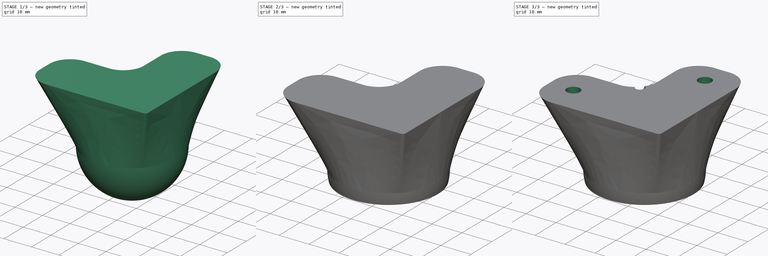
[diagram: build sequence overview — one tinted view per stage of 3, left to right]
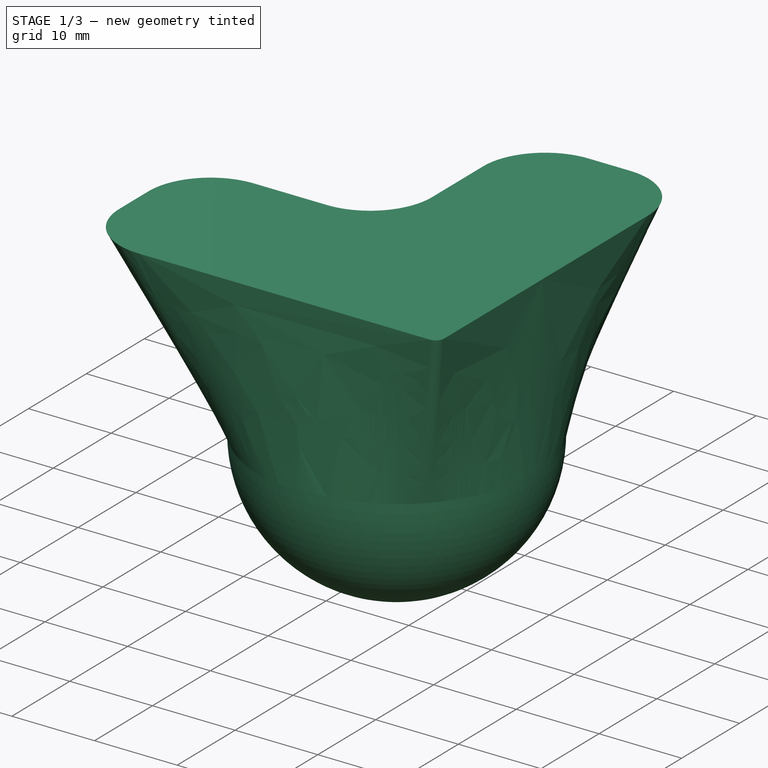
[diagram: stage 1 of 3 — iso view after this stage's code; geometry added in this stage tinted green]
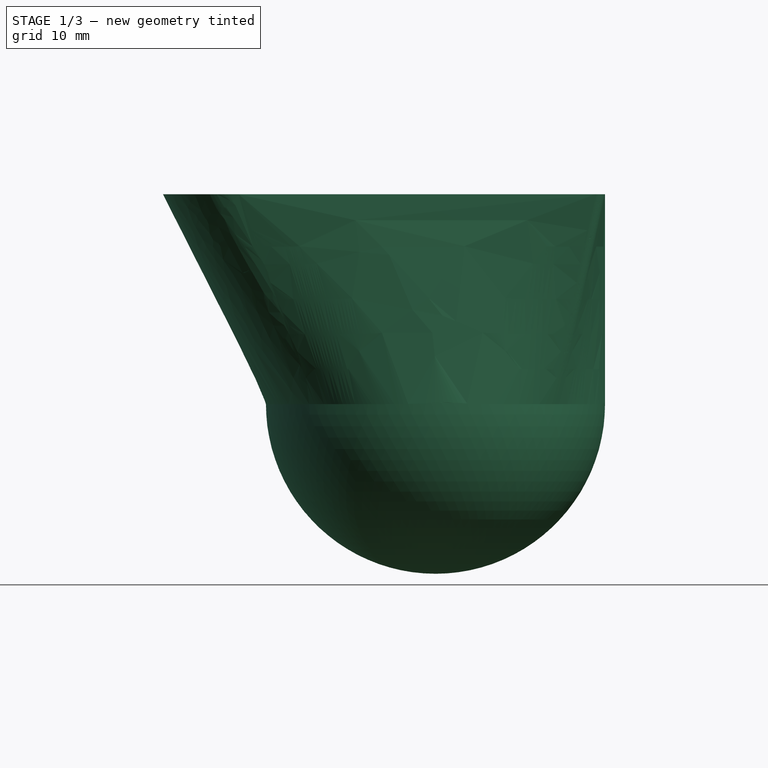
[diagram: stage 1 of 3 — front view after this stage's code; geometry added in this stage tinted green]
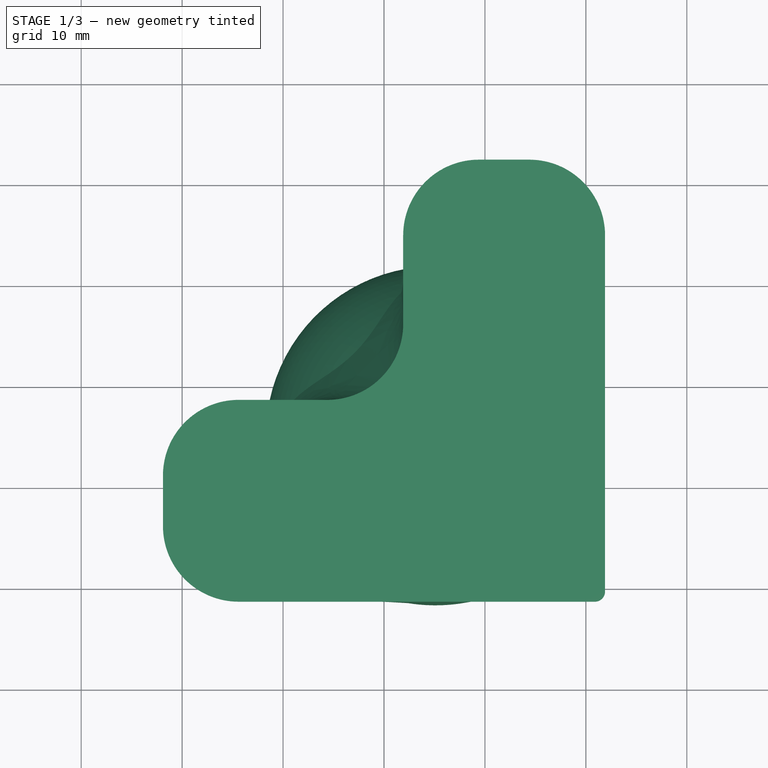
[diagram: stage 1 of 3 — top view after this stage's code; geometry added in this stage tinted green]
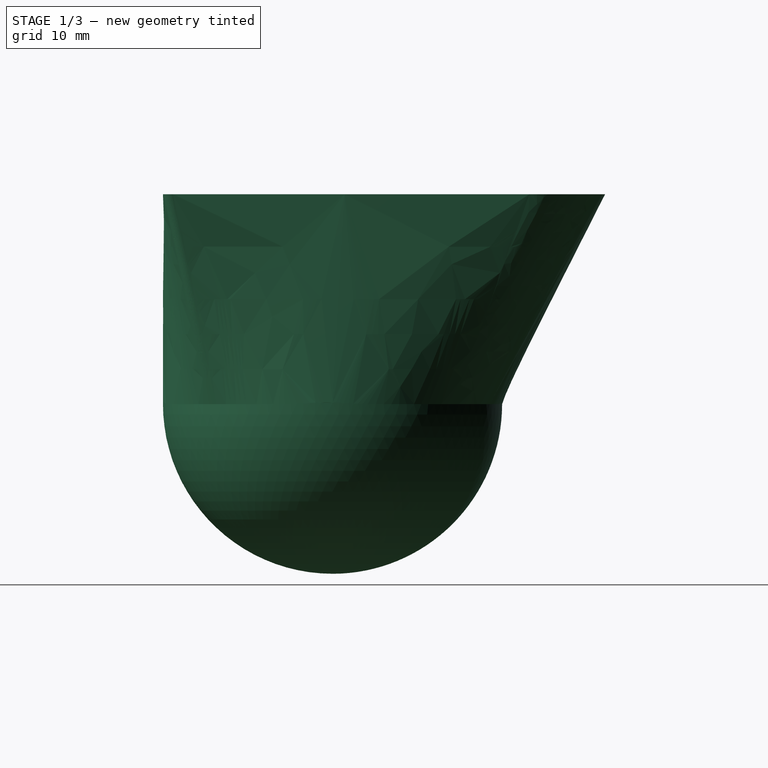
[diagram: stage 1 of 3 — right view after this stage's code; geometry added in this stage tinted green]
FCSTD DOCUMENT  (FreeCAD 0.17R13528 (Git))
Label: BallFoot
License: All rights reserved
LicenseURL: http://en.wikipedia.org/wiki/All_rights_reserved
objects: Sketcher::SketchObject×4, PartDesign::Pocket×2, Spreadsheet::Sheet×1, PartDesign::AdditiveLoft×1, PartDesign::Plane×1, PartDesign::AdditiveSphere×1, PartDesign::SubtractiveCylinder×1, PartDesign::SubtractiveSphere×1, PartDesign::Body×1, App::Part×1
note: 18 computed .brp shape members not serialized (recipe doc carries the construction recipe); baked Part::Feature solids carry a one-line shape summary decoded from their .brp

FEATURE [Spreadsheet::Sheet] Spreadsheet  label="Data"
  cells = B2=M4Radius; C2(M4Radius)==2.2000000000000002mm; B3=M4HeadRadius; C3(M4HeadRadius)==3.7999999999999998mm; B5=BallRadius; C5(BallRadius)==14.800000000000001mm; B6=WallThickness; C6(WallThickness)==2mm; B7=ExtraHeight; C7(ExtraHeight)==4mm; B8=Cover_%; C8(Cover)=25; B9=ScrewHeight; C9(ScrewHeight)==4mm; B10=BaseSizeExtra; C10(BaseSizeExtra)==10.199999999999999mm; B11=ProfileSize; C11(ProfileSize)==20mm; B12=OuterCormerRadius; C12(OuterCormerRadius)==1mm; B13=InnerCornerRadius; C13(InnerCornerRadius)==7.5mm; B14=HoleOffset; C14(HoleOffset)==8mm; B15=Assymetric; C15(Assymetric)=1; B17=CubeOffset; C17(CubeOffset)==-2 * (BallRadius + WallThickness) - BallRadius * Cover / 100; B18=HeadHoleLength; C18(HeadHoleLength)==BallRadius * Cover / 100 + BallRadius + WallThickness + ExtraHeight - ScrewHeight; B19=TotalHeight; C19(TotalHeight)==BallRadius * Cover / 100 + BallRadius + WallThickness + ExtraHeight; B20=BaseSize; C20(BaseSize)==(BallRadius + WallThickness) * 2 + BaseSizeExtra
FEATURE [Sketcher::SketchObject] Sketch001  label="Rectangle"
  MapMode = 5
  Placement = pos=(0,0,20.8) rot=(0,0,1;0rad)
  expr: Constraints[25] = Data.ProfileSize
  expr: Constraints[45] = Data.InnerCornerRadius
  expr: Constraints[43] = (Data.ProfileSize - 5mm) / 2
  expr: Placement.Base.z = Spreadsheet.BallRadius + Spreadsheet.WallThickness + Spreadsheet.ExtraHeight
  expr: Constraints[17] = Spreadsheet.OuterCormerRadius
  expr: Constraints[38] = Spreadsheet.BaseSize
  sketch-geometry (18):
    g0: LineSegment StartX=21.9 StartY=14.4 StartZ=0 EndX=21.9 EndY=-20.9 EndZ=0
    g1: LineSegment StartX=20.9 StartY=-21.9 StartZ=0 EndX=-14.4 EndY=-21.9 EndZ=0
    g2: LineSegment StartX=-21.9 StartY=-14.4 StartZ=0 EndX=-21.9 EndY=-9.4 EndZ=0
    g3: LineSegment StartX=-14.4 StartY=-1.9 StartZ=0 EndX=-5.6 EndY=-1.9 EndZ=0
    g4: LineSegment StartX=1.9 StartY=5.6 StartZ=0 EndX=1.9 EndY=14.4 EndZ=0
    g5: LineSegment StartX=9.4 StartY=21.9 StartZ=0 EndX=14.4 EndY=21.9 EndZ=0
    g6: ArcOfCircle CenterX=14.4 CenterY=14.4 CenterZ=0 NormalX=0 NormalY=0 NormalZ=1 AngleXU=0 Radius=7.5 StartAngle=0 EndAngle=1.5708
    g7: ArcOfCircle CenterX=9.4 CenterY=14.4 CenterZ=0 NormalX=0 NormalY=0 NormalZ=1 AngleXU=0 Radius=7.5 StartAngle=1.5708 EndAngle=3.14159
    g8: ArcOfCircle CenterX=-5.6 CenterY=5.6 CenterZ=0 NormalX=0 NormalY=0 NormalZ=1 AngleXU=0 Radius=7.5 StartAngle=4.71239 EndAngle=6.28319
    g9: ArcOfCircle CenterX=-14.4 CenterY=-9.4 CenterZ=0 NormalX=0 NormalY=0 NormalZ=1 AngleXU=0 Radius=7.5 StartAngle=1.5708 EndAngle=3.14159
    g10: ArcOfCircle CenterX=-14.4 CenterY=-14.4 CenterZ=0 NormalX=0 NormalY=0 NormalZ=1 AngleXU=0 Radius=7.5 StartAngle=3.14159 EndAngle=4.71239
    g11: ArcOfCircle CenterX=20.9 CenterY=-20.9 CenterZ=0 NormalX=0 NormalY=0 NormalZ=1 AngleXU=0 Radius=1 StartAngle=4.71239 EndAngle=6.28319
    g12: LineSegment [constr] StartX=1.9 StartY=14.4 StartZ=0 EndX=21.9 EndY=14.4 EndZ=0
    g13: LineSegment [constr] StartX=-14.4 StartY=-21.9 StartZ=0 EndX=-14.4 EndY=-1.9 EndZ=0
    g14: LineSegment [constr] StartX=-21.9 StartY=21.9 StartZ=0 EndX=21.9 EndY=21.9 EndZ=0
    g15: LineSegment [constr] StartX=21.9 StartY=21.9 StartZ=0 EndX=21.9 EndY=-21.9 EndZ=0
    g16: LineSegment [constr] StartX=21.9 StartY=-21.9 StartZ=0 EndX=-21.9 EndY=-21.9 EndZ=0
    g17: LineSegment [constr] StartX=-21.9 StartY=-21.9 StartZ=0 EndX=-21.9 EndY=21.9 EndZ=0
  constraints (47):
    c: Equal(g0,g1)
    c: Vertical(g2)
    c: Horizontal(g3)
    c: Vertical(g4)
    c: Horizontal(g5)
    c: Tangent(g0,g6) = 1.5708
    c: Tangent(g5,g6) = 1.5708
    c: Tangent(g4,g7) = 1.5708
    c: Tangent(g5,g7) = 1.5708
    c: Tangent(g3,g8) = -1.5708
    c: Tangent(g4,g8) = -1.5708
    c: Tangent(g2,g9) = 1.5708
    c: Tangent(g3,g9) = 1.5708
    c: Tangent(g1,g10) = 1.5708
    c: Tangent(g2,g10) = 1.5708
    c: Tangent(g0,g11) = 1.5708
    c: Tangent(g1,g11) = 1.5708
    c: Radius(g11) = 1
    c: Equal(g6,g7)
    c: Equal(g9,g10)
    c: Equal(g1,g0)
    c: Coincident(g12,g4)
    c: Coincident(g12,g0)
    c: Coincident(g13,g1)
    c: Coincident(g13,g3)
    c: DistanceY(g13,g13) = 20
    c: Equal(g13,g12)
    c: Coincident(g14,g15)
    c: Coincident(g15,g16)
    c: Coincident(g16,g17)
    c: Coincident(g17,g14)
    c: Horizontal(g14)
    c: Vertical(g15)
    c: Equal(g14,g17)
    c: Equal(g17,g16)
    c: Equal(g16,g15)
    c: Symmetric(g14,g15,g-1)
    c: Symmetric(g16,g14,g-1)
    c: DistanceX(g16,g16) = 43.8
    c: PointOnObject(g2,g17)
    c: PointOnObject(g0,g15)
    c: PointOnObject(g1,g16)
    c: PointOnObject(g5,g14)
    c: Radius(g10) = 7.5
    c: Horizontal(g1)
    c: Radius(g8) = 7.5
    c: Equal(g10,g7)
FEATURE [Sketcher::SketchObject] Sketch004  label="ScrewHoles"
  MapMode = 5
  Placement = pos=(0,0,20.8) rot=(0,0,1;0rad)
  expr: Constraints[1] = Data.M4Radius
  expr: Constraints[15] = Spreadsheet.HoleOffset
  expr: Constraints[18] = Spreadsheet.HoleOffset
  expr: Constraints[17] = Spreadsheet.ProfileSize / 2
  expr: Constraints[14] = Data.BaseSize
  expr: Placement.Base.z = Rectangle.Placement.Base.z
  expr: Constraints[16] = Spreadsheet.ProfileSize / 2
  sketch-geometry (7):
    g0: Circle CenterX=11.9 CenterY=13.9 CenterZ=0 NormalX=0 NormalY=0 NormalZ=1 AngleXU=0 Radius=2.2
    g1: Circle CenterX=-13.9 CenterY=-11.9 CenterZ=0 NormalX=0 NormalY=0 NormalZ=1 AngleXU=0 Radius=2.2
    g2: LineSegment [constr] StartX=-21.9 StartY=21.9 StartZ=0 EndX=21.9 EndY=21.9 EndZ=0
    g3: LineSegment [constr] StartX=21.9 StartY=21.9 StartZ=0 EndX=21.9 EndY=-21.9 EndZ=0
    g4: LineSegment [constr] StartX=21.9 StartY=-21.9 StartZ=0 EndX=-21.9 EndY=-21.9 EndZ=0
    g5: LineSegment [constr] StartX=-21.9 StartY=-21.9 StartZ=0 EndX=-21.9 EndY=21.9 EndZ=0
    g6: Circle CenterX=0 CenterY=0 CenterZ=0 NormalX=0 NormalY=0 NormalZ=1 AngleXU=0 Radius=1.5
  constraints (21):
    c: Equal(g0,g1)
    c: Radius(g0) = 2.2
    c: Coincident(g2,g3)
    c: Coincident(g3,g4)
    c: Coincident(g4,g5)
    c: Coincident(g5,g2)
    c: Horizontal(g2)
    c: Horizontal(g4)
    c: Vertical(g3)
    c: Vertical(g5)
    c: Symmetric(g2,g3,g-1)
    c: Equal(g2,g5)
    c: Equal(g5,g3)
    c: Equal(g3,g4)
    c: DistanceX(g2,g2) = 43.8
    c: DistanceY(g0,g2) = 8
    c: DistanceY(g3,g1) = 10
    c: DistanceX(g0,g2) = 10
    c: DistanceX(g4,g1) = 8
    c: Coincident(g6,g-1)
    c: Radius(g6) = 1.5
FEATURE [Sketcher::SketchObject] Sketch005  label="ScrewHeadHoles"
  MapMode = 5
  Placement = pos=(0,0,17.8) rot=(0,0,1;0rad)
  expr: Constraints[1] = Data.M4HeadRadius
  expr: Constraints[15] = Spreadsheet.HoleOffset
  expr: Constraints[18] = Spreadsheet.HoleOffset
  expr: Constraints[17] = Spreadsheet.ProfileSize / 2
  expr: Constraints[14] = Data.BaseSize
  expr: Placement.Base.z = ScrewHoles.Placement.Base.z - 3mm
  expr: Constraints[16] = Spreadsheet.ProfileSize / 2
  sketch-geometry (6):
    g0: Circle CenterX=11.9 CenterY=13.9 CenterZ=0 NormalX=0 NormalY=0 NormalZ=1 AngleXU=0 Radius=3.8
    g1: Circle CenterX=-13.9 CenterY=-11.9 CenterZ=0 NormalX=0 NormalY=0 NormalZ=1 AngleXU=0 Radius=3.8
    g2: LineSegment [constr] StartX=-21.9 StartY=21.9 StartZ=0 EndX=21.9 EndY=21.9 EndZ=0
    g3: LineSegment [constr] StartX=21.9 StartY=21.9 StartZ=0 EndX=21.9 EndY=-21.9 EndZ=0
    g4: LineSegment [constr] StartX=21.9 StartY=-21.9 StartZ=0 EndX=-21.9 EndY=-21.9 EndZ=0
    g5: LineSegment [constr] StartX=-21.9 StartY=-21.9 StartZ=0 EndX=-21.9 EndY=21.9 EndZ=0
  constraints (19):
    c: Equal(g0,g1)
    c: Radius(g0) = 3.8
    c: Coincident(g2,g3)
    c: Coincident(g3,g4)
    c: Coincident(g4,g5)
    c: Coincident(g5,g2)
    c: Horizontal(g2)
    c: Horizontal(g4)
    c: Vertical(g3)
    c: Vertical(g5)
    c: Symmetric(g2,g3,g-1)
    c: Equal(g2,g5)
    c: Equal(g5,g3)
    c: Equal(g3,g4)
    c: DistanceX(g2,g2) = 43.8
    c: DistanceY(g0,g2) = 8
    c: DistanceY(g3,g1) = 10
    c: DistanceX(g0,g2) = 10
    c: DistanceX(g4,g1) = 8
FEATURE [Sketcher::SketchObject] Sketch  label="Circle"
  MapMode = 5
  Placement = pos=(5.1,-5.1,0) rot=(0,0,1;0rad)
  expr: Placement.Base.y = -Data.BaseSizeExtra / 2 * Data.Assymetric
  expr: Placement.Base.x = Data.BaseSizeExtra / 2 * Data.Assymetric
  expr: Constraints[0] = Spreadsheet.BallRadius + Spreadsheet.WallThickness - 0.001mm
  sketch-geometry (1):
    g0: Circle CenterX=0 CenterY=0 CenterZ=0 NormalX=0 NormalY=0 NormalZ=1 AngleXU=0 Radius=16.799
  constraints (2):
    c: Radius(g0) = 16.799
    c: Coincident(g0,g-1)
FEATURE [PartDesign::AdditiveLoft] AdditiveLoft
  Closed = false
  Placement = pos=(5.1,-5.1,0) rot=(0,0,1;0rad)
  Profile = -> Sketch
  Ruled = false
  Sections = -> [Sketch001]
FEATURE [PartDesign::Plane] DatumPlane
  MapMode = 11
  Placement = pos=(5.1,-5.1,0) rot=(0,0,1;1.5708rad)
  Support = -> [Sketch]
FEATURE [PartDesign::AdditiveSphere] Sphere
  Angle1 = -90
  Angle2 = 90
  Angle3 = 360
  AttacherType = Attacher::AttachEngine3D
  BaseFeature = -> AdditiveLoft
  MapMode = 5
  Placement = pos=(5.1,-5.1,0) rot=(0,0,1;1.5708rad)
  Radius = 16.8
  Support = -> [DatumPlane]
  expr: Radius = Spreadsheet.BallRadius + Spreadsheet.WallThickness
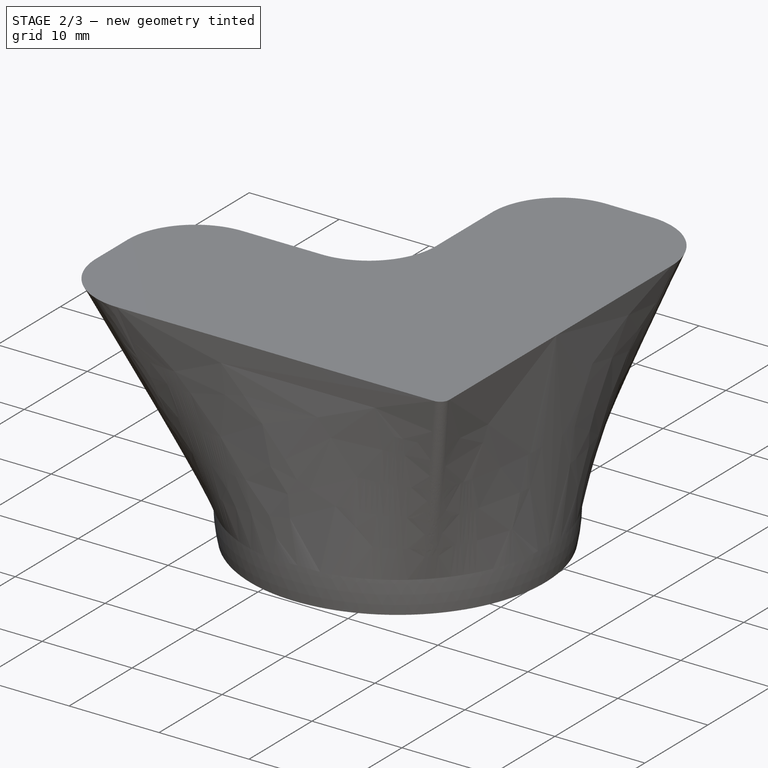
[diagram: stage 2 of 3 — iso view after this stage's code; geometry added in this stage tinted green]
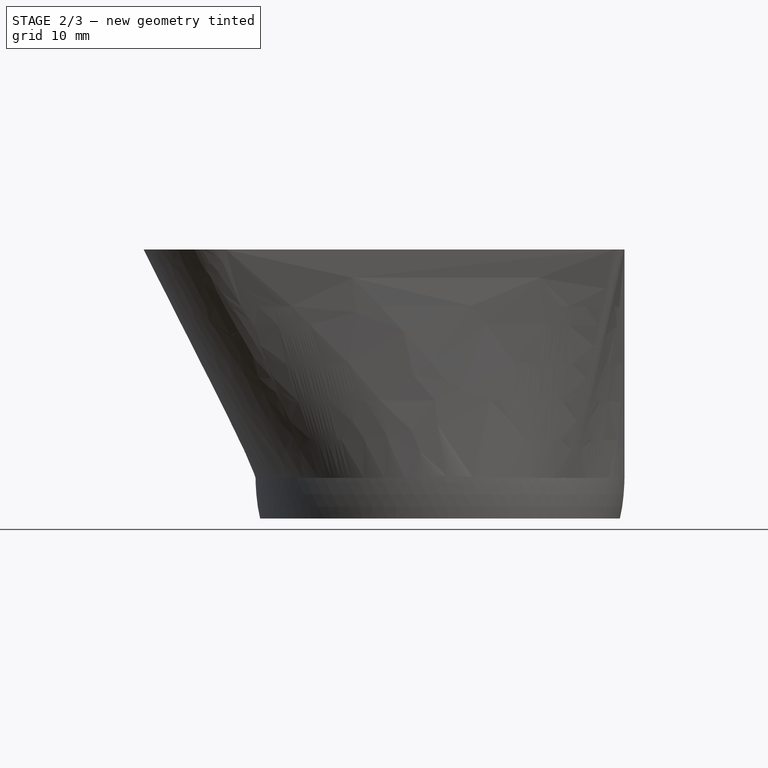
[diagram: stage 2 of 3 — front view after this stage's code; geometry added in this stage tinted green]
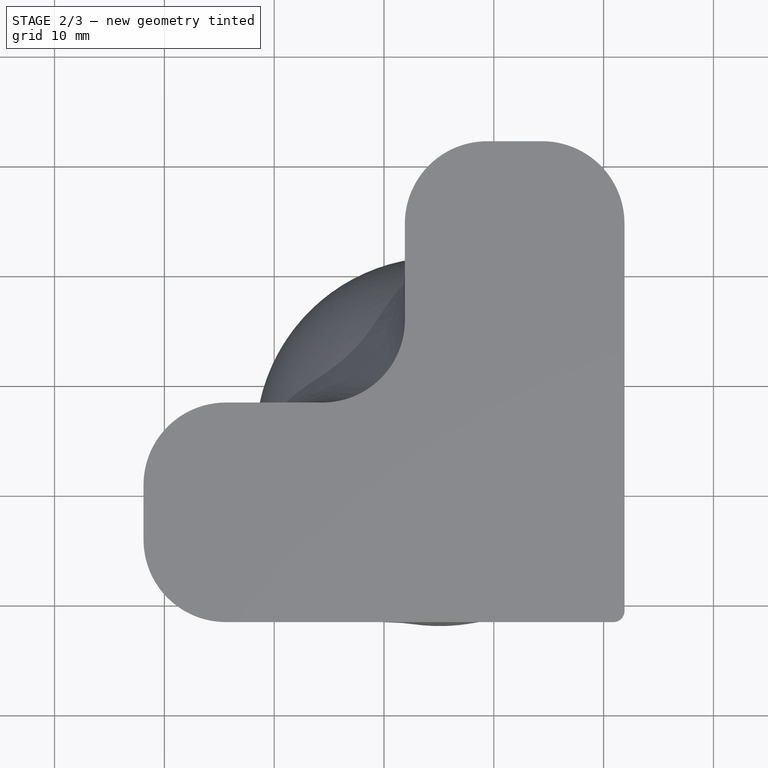
[diagram: stage 2 of 3 — top view after this stage's code; geometry added in this stage tinted green]
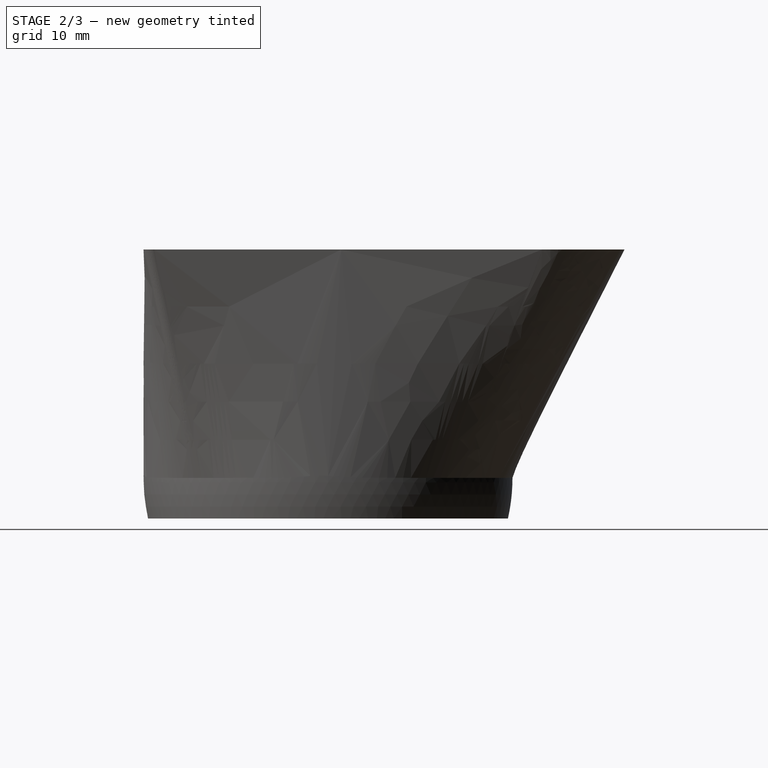
[diagram: stage 2 of 3 — right view after this stage's code; geometry added in this stage tinted green]
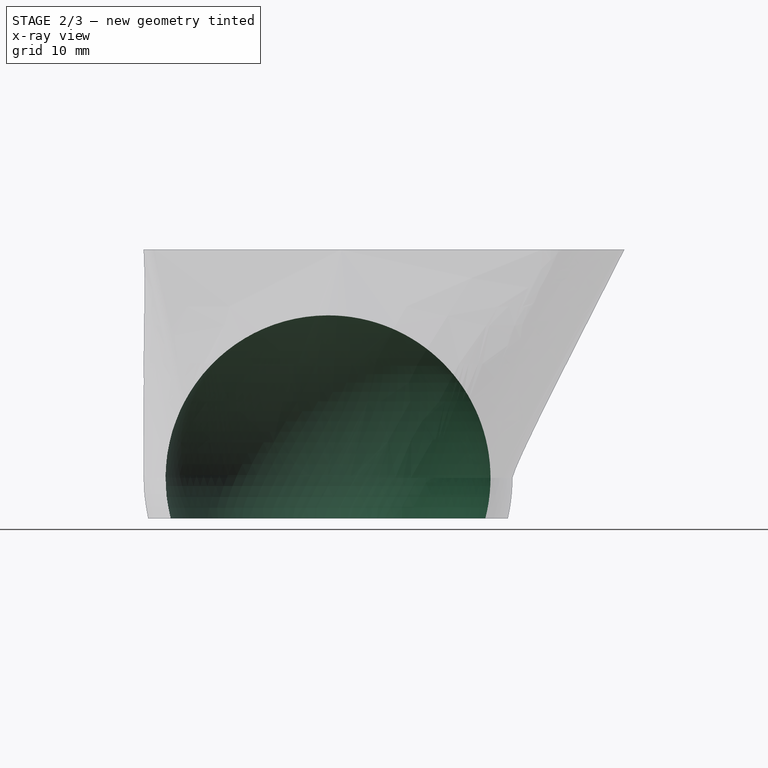
[diagram: stage 2 of 3 — x-ray composite at the right view; earlier geometry ghosted, this stage's added geometry solid]
FEATURE [PartDesign::SubtractiveCylinder] Cylinder
  Angle = 360
  AttacherType = Attacher::AttachEngine3D
  AttachmentOffset = pos=(0,0,3.7) rot=(0,0,1;0rad)
  BaseFeature = -> Sphere
  Height = 13.1
  MapMode = 5
  Placement = pos=(5.1,-5.1,-3.7) rot=(-0.707107,0.707107,0;3.14159rad)
  Radius = 16.8
  Support = -> [DatumPlane]
  expr: Radius = Data.BallRadius + Data.WallThickness
  expr: Height = Data.BallRadius + Data.WallThickness - Cylinder.AttachmentOffset.Base.z
  expr: AttachmentOffset.Base.z = Data.BallRadius * Data.Cover / 100
FEATURE [PartDesign::SubtractiveSphere] Sphere001
  Angle1 = -90
  Angle2 = 90
  Angle3 = 360
  AttacherType = Attacher::AttachEngine3D
  BaseFeature = -> Cylinder
  MapMode = 5
  Placement = pos=(5.1,-5.1,0) rot=(0,0,1;1.5708rad)
  Radius = 14.8
  Support = -> [DatumPlane]
  expr: Radius = Data.BallRadius
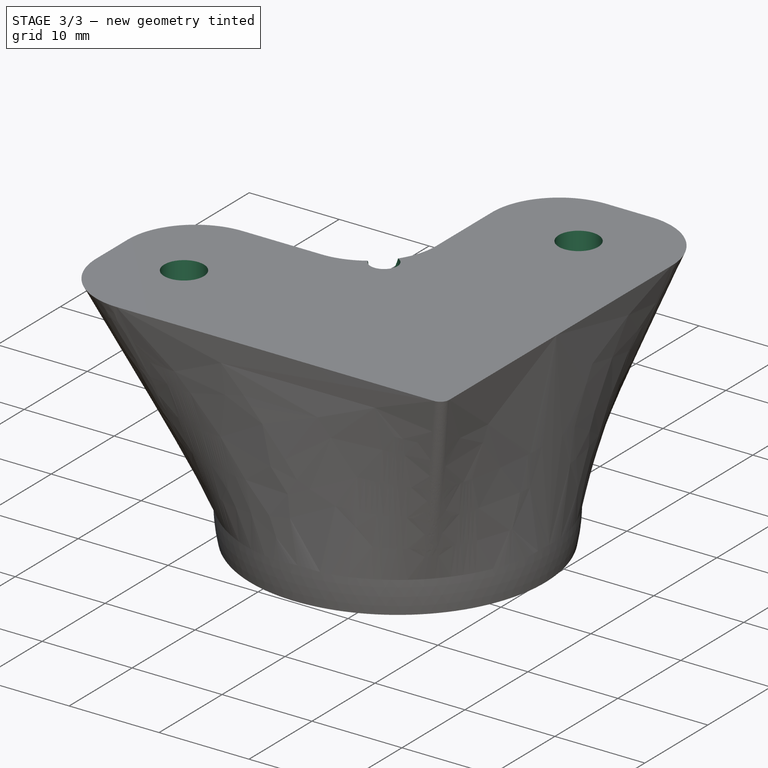
[diagram: stage 3 of 3 — iso view after this stage's code; geometry added in this stage tinted green]
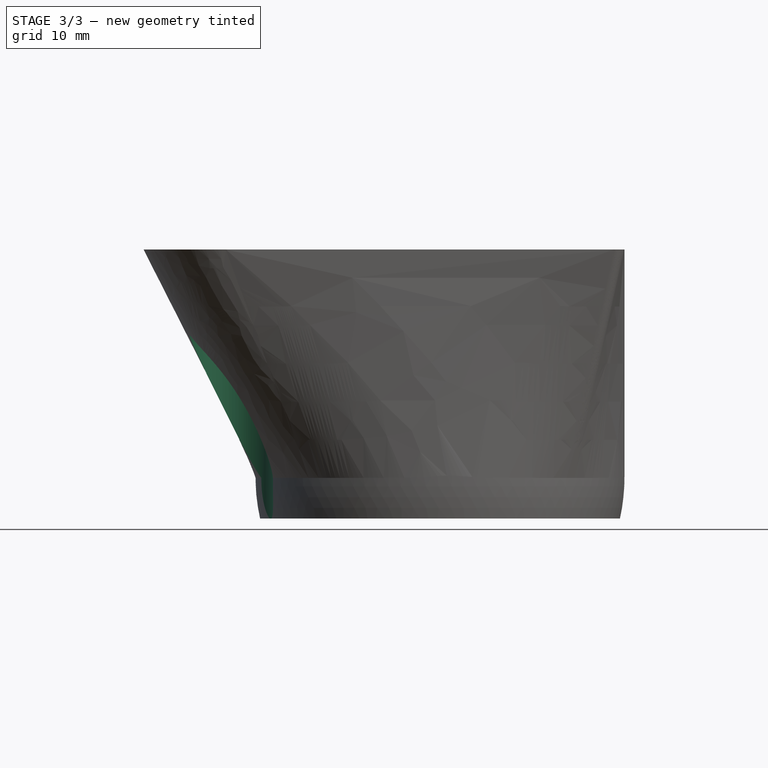
[diagram: stage 3 of 3 — front view after this stage's code; geometry added in this stage tinted green]
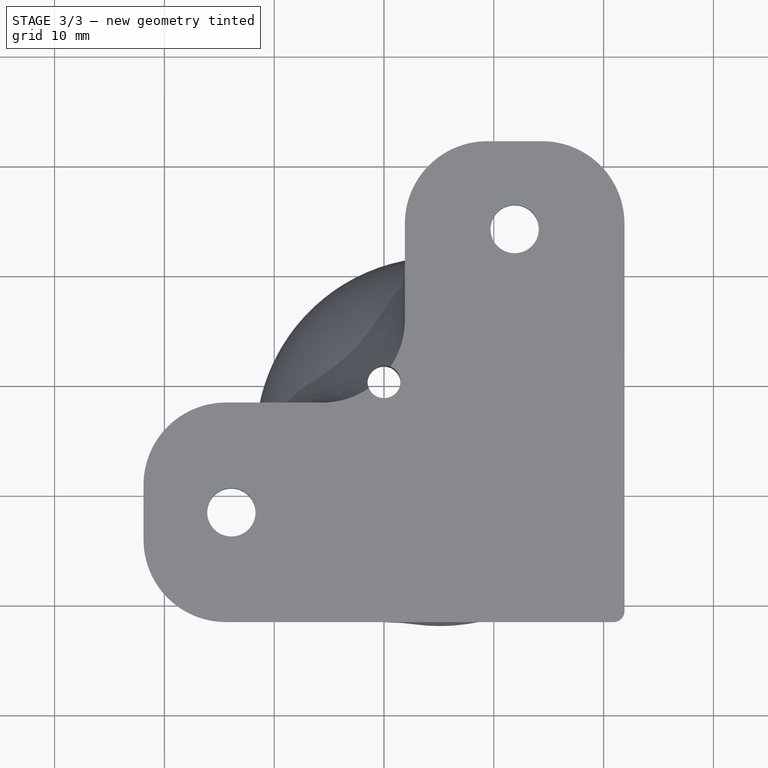
[diagram: stage 3 of 3 — top view after this stage's code; geometry added in this stage tinted green]
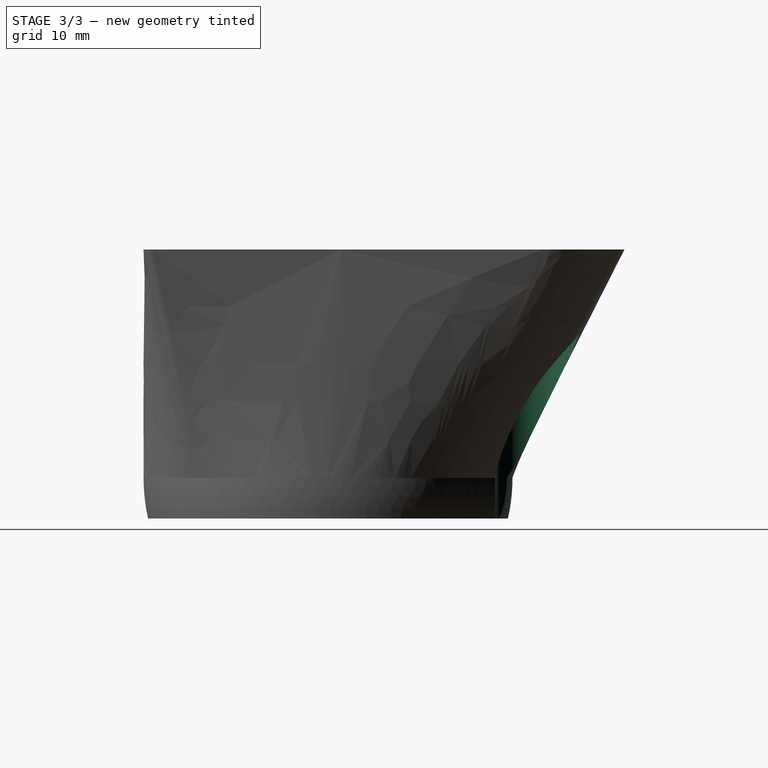
[diagram: stage 3 of 3 — right view after this stage's code; geometry added in this stage tinted green]
FEATURE [PartDesign::Pocket] Pocket
  BaseFeature = -> Sphere001
  Length = 5
  Length2 = 100
  Placement = pos=(5.1,-5.1,0) rot=(0,0,1;1.5708rad)
  Profile = -> Sketch004
  Type = 1
FEATURE [PartDesign::Pocket] Pocket001
  BaseFeature = -> Pocket
  Length = 5
  Length2 = 100
  Placement = pos=(5.1,-5.1,0) rot=(0,0,1;1.5708rad)
  Profile = -> Sketch005
  Type = 1
FEATURE [PartDesign::Body] Body
  Group = -> [Sketch,Sketch001,AdditiveLoft,DatumPlane,Sphere,Cylinder,Sphere001,Sketch004,Pocket,Sketch005,Pocket001]
  Origin = -> Origin001
  Tip = -> Pocket001
FEATURE [App::Part] Part
  Group = -> [Body]
  License = CC BY 3.0
  LicenseURL = http://creativecommons.org/licenses/by/3.0/
  Origin = -> Origin
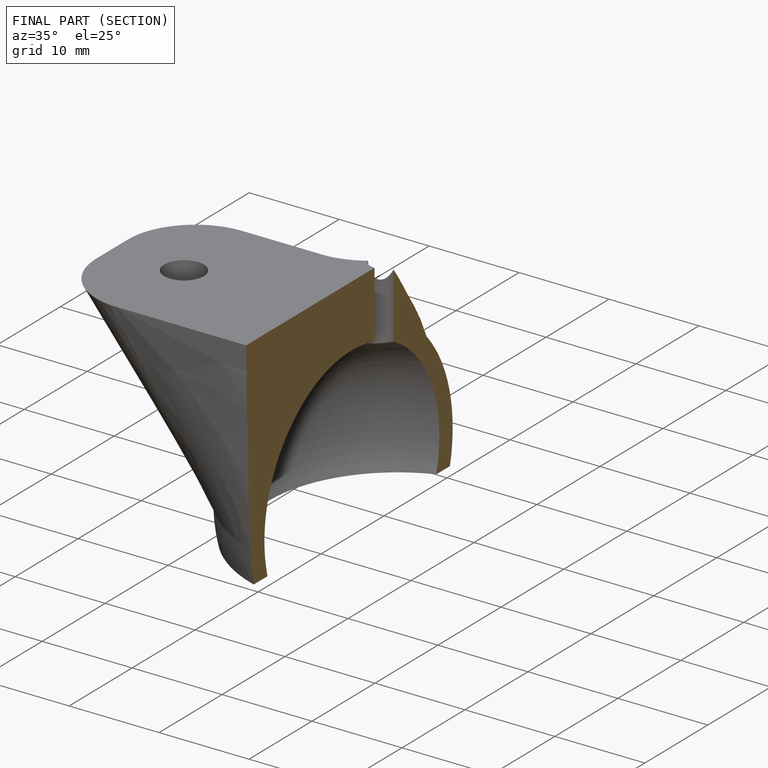
[diagram: finished part — half-section view (interior)]
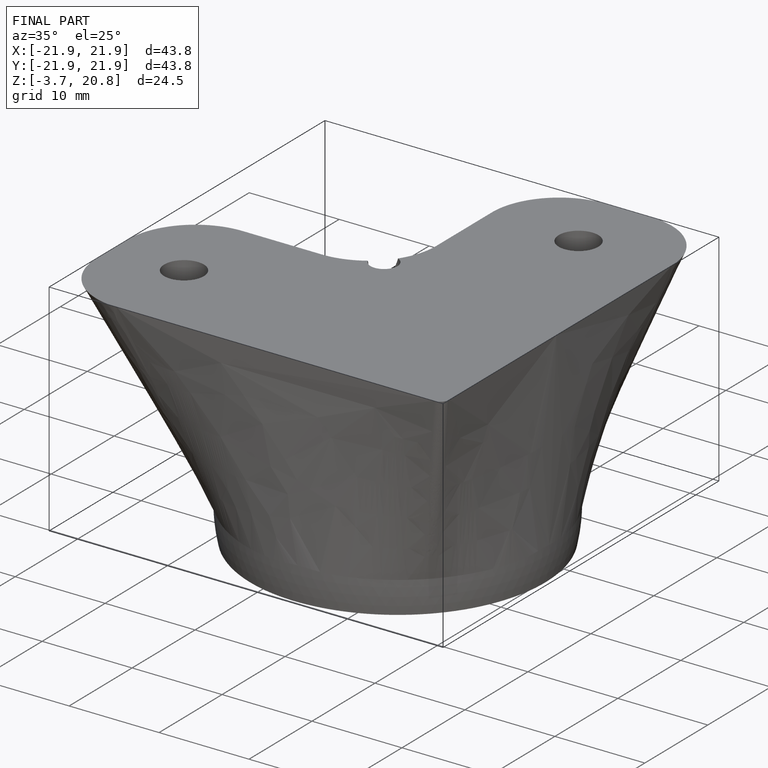
[diagram: finished part — iso view with bounding-box wireframe]
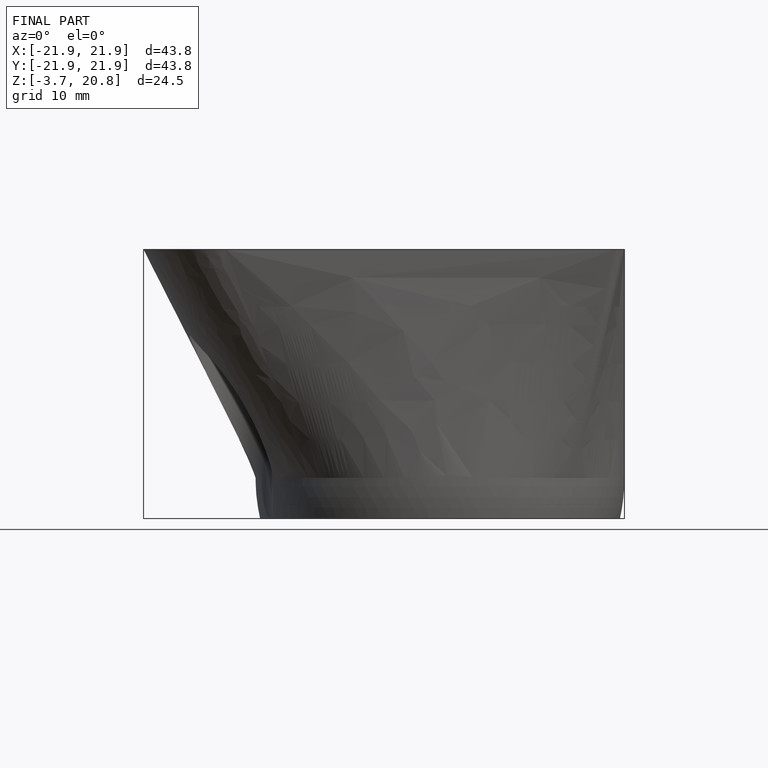
[diagram: finished part — front view with bounding-box wireframe]
